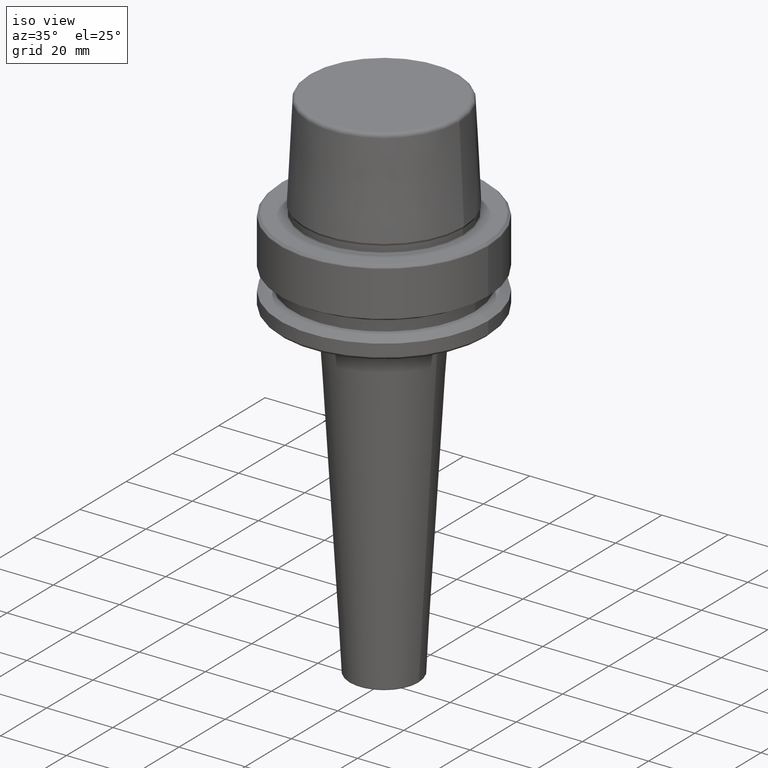
[diagram: clean part render]
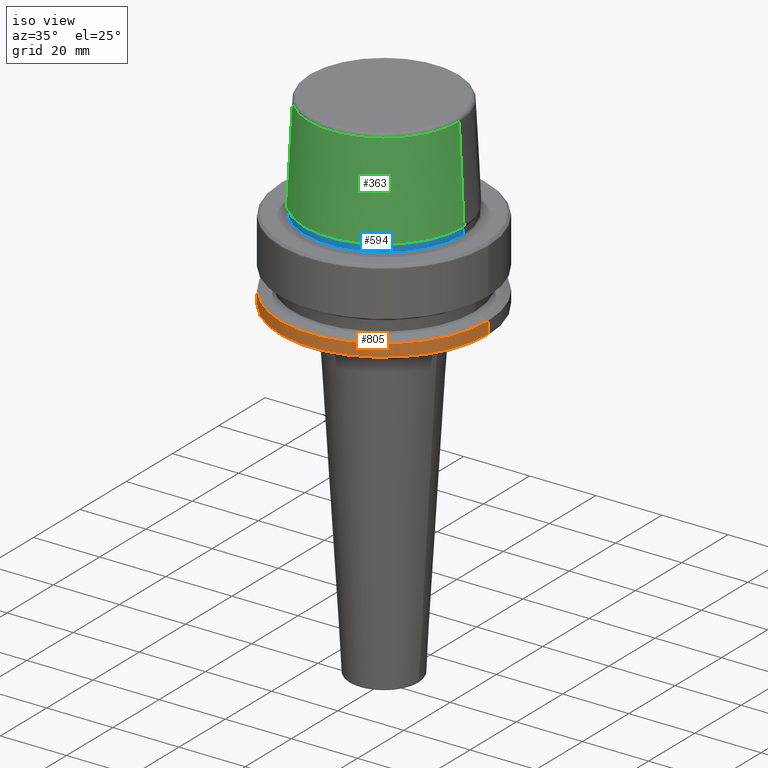
[diagram: same view with three faces highlighted in distinct colors, each labeled with its STEP entity id]
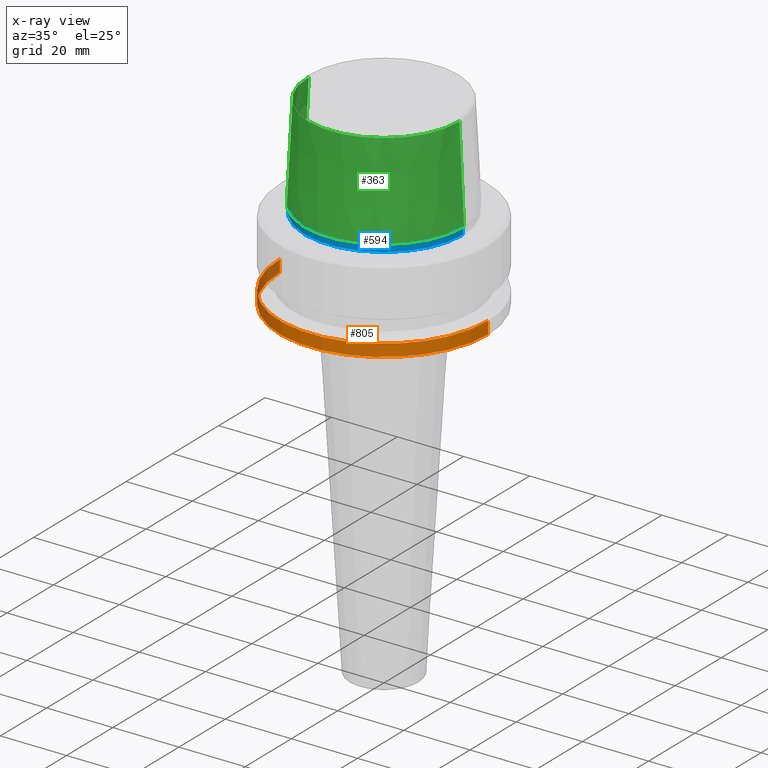
[diagram: x-ray of the same camera — body ghosted, the three highlighted faces saturated]
A machine part, iso view with three faces highlighted in distinct colors.
The next image is the same camera in x-ray (body ghosted, the three faces saturated) — at least one of them is partly hidden behind the body in this view.
Their STEP definitions:

[orange] entity #805 — the highlighted cylindrical surface (partial cylindrical patch) has radius 31.5 mm, axis along (-0, -0, 1).
#32 = CIRCLE ( 'NONE', #385, 31.50000000000000000 ) ;
#55 = DIRECTION ( 'NONE',  ( -0.0000000000000000000, -0.0000000000000000000, 1.000000000000000000 ) ) ;
#98 = LINE ( 'NONE', #356, #1111 ) ;
#108 = ORIENTED_EDGE ( 'NONE', *, *, #320, .F. ) ;
#172 = VERTEX_POINT ( 'NONE', #524 ) ;
#200 = CARTESIAN_POINT ( 'NONE',  ( 31.50000000000000000, 0.0000000000000000000, -21.37749907475931700 ) ) ;
#203 = DIRECTION ( 'NONE',  ( -0.0000000000000000000, -0.0000000000000000000, 1.000000000000000000 ) ) ;
#205 = EDGE_CURVE ( 'NONE', #256, #172, #98, .T. ) ;
#256 = VERTEX_POINT ( 'NONE', #1054 ) ;
#320 = EDGE_CURVE ( 'NONE', #172, #784, #32, .T. ) ;
#356 = CARTESIAN_POINT ( 'NONE',  ( -31.50000000000000000, 3.857637417314162700E-015, 78.96908074195309300 ) ) ;
#360 = EDGE_CURVE ( 'NONE', #256, #877, #712, .T. ) ;
#379 = DIRECTION ( 'NONE',  ( -0.0000000000000000000, -0.0000000000000000000, 1.000000000000000000 ) ) ;
#385 = AXIS2_PLACEMENT_3D ( 'NONE', #504, #1194, #600 ) ;
#393 = CARTESIAN_POINT ( 'NONE',  ( 0.0000000000000000000, 0.0000000000000000000, 78.96908074195309300 ) ) ;
#418 = LINE ( 'NONE', #969, #477 ) ;
#434 = EDGE_CURVE ( 'NONE', #877, #784, #418, .T. ) ;
#455 = FACE_OUTER_BOUND ( 'NONE', #1065, .T. ) ;
#477 = VECTOR ( 'NONE', #379, 1000.000000000000000 ) ;
#494 = CARTESIAN_POINT ( 'NONE',  ( 31.50000000000000000, 0.0000000000000000000, -25.03431457505077200 ) ) ;
#504 = CARTESIAN_POINT ( 'NONE',  ( 0.0000000000000000000, 0.0000000000000000000, -21.37749907475931700 ) ) ;
#517 = ORIENTED_EDGE ( 'NONE', *, *, #434, .T. ) ;
#524 = CARTESIAN_POINT ( 'NONE',  ( -31.50000000000000000, 3.857637417314162700E-015, -21.37749907475931700 ) ) ;
#600 = DIRECTION ( 'NONE',  ( 1.000000000000000000, 0.0000000000000000000, 0.0000000000000000000 ) ) ;
#629 = CARTESIAN_POINT ( 'NONE',  ( 0.0000000000000000000, 0.0000000000000000000, -25.03431457505077200 ) ) ;
#712 = CIRCLE ( 'NONE', #1224, 31.50000000000000000 ) ;
#733 = DIRECTION ( 'NONE',  ( 1.000000000000000000, 0.0000000000000000000, 0.0000000000000000000 ) ) ;
#784 = VERTEX_POINT ( 'NONE', #200 ) ;
#805 = ADVANCED_FACE ( 'NONE', ( #455 ), #1209, .T. ) ;
#877 = VERTEX_POINT ( 'NONE', #494 ) ;
#949 = DIRECTION ( 'NONE',  ( -0.0000000000000000000, -0.0000000000000000000, 1.000000000000000000 ) ) ;
#969 = CARTESIAN_POINT ( 'NONE',  ( 31.50000000000000000, 0.0000000000000000000, 78.96908074195309300 ) ) ;
#1054 = CARTESIAN_POINT ( 'NONE',  ( -31.50000000000000000, 3.857637417314161900E-015, -25.03431457505077200 ) ) ;
#1065 = EDGE_LOOP ( 'NONE', ( #1153, #1159, #517, #108 ) ) ;
#1074 = DIRECTION ( 'NONE',  ( 1.000000000000000000, 0.0000000000000000000, 0.0000000000000000000 ) ) ;
#1111 = VECTOR ( 'NONE', #949, 1000.000000000000000 ) ;
#1115 = AXIS2_PLACEMENT_3D ( 'NONE', #393, #203, #1074 ) ;
#1153 = ORIENTED_EDGE ( 'NONE', *, *, #205, .F. ) ;
#1159 = ORIENTED_EDGE ( 'NONE', *, *, #360, .T. ) ;
#1194 = DIRECTION ( 'NONE',  ( -0.0000000000000000000, -0.0000000000000000000, 1.000000000000000000 ) ) ;
#1209 = CYLINDRICAL_SURFACE ( 'NONE', #1115, 31.50000000000000000 ) ;
#1224 = AXIS2_PLACEMENT_3D ( 'NONE', #629, #55, #733 ) ;

[blue] entity #594 — the highlighted cylindrical surface (partial cylindrical patch) has radius 23.89 mm, axis along (-0, -0, 1).
#3 = DIRECTION ( 'NONE',  ( -0.0000000000000000000, -0.0000000000000000000, 1.000000000000000000 ) ) ;
#41 = VERTEX_POINT ( 'NONE', #1148 ) ;
#67 = CARTESIAN_POINT ( 'NONE',  ( -23.89000000000000100, 2.925681203163027000E-015, 78.96908074195309300 ) ) ;
#99 = DIRECTION ( 'NONE',  ( -0.0000000000000000000, -0.0000000000000000000, 1.000000000000000000 ) ) ;
#134 = EDGE_CURVE ( 'NONE', #149, #41, #727, .T. ) ;
#149 = VERTEX_POINT ( 'NONE', #615 ) ;
#151 = EDGE_CURVE ( 'NONE', #633, #1191, #695, .T. ) ;
#313 = CIRCLE ( 'NONE', #737, 23.89000000000000400 ) ;
#328 = DIRECTION ( 'NONE',  ( -0.0000000000000000000, -0.0000000000000000000, 1.000000000000000000 ) ) ;
#343 = CARTESIAN_POINT ( 'NONE',  ( 23.89000000000000400, 0.0000000000000000000, 0.1312552021302954000 ) ) ;
#375 = FACE_OUTER_BOUND ( 'NONE', #1096, .T. ) ;
#422 = VECTOR ( 'NONE', #328, 1000.000000000000000 ) ;
#572 = CARTESIAN_POINT ( 'NONE',  ( 0.0000000000000000000, 0.0000000000000000000, 0.1312552021302954000 ) ) ;
#594 = ADVANCED_FACE ( 'NONE', ( #375 ), #1098, .T. ) ;
#614 = ORIENTED_EDGE ( 'NONE', *, *, #134, .F. ) ;
#615 = CARTESIAN_POINT ( 'NONE',  ( -23.89000000000000400, 2.961613815265650600E-015, 0.1312552021302954000 ) ) ;
#626 = ORIENTED_EDGE ( 'NONE', *, *, #736, .T. ) ;
#631 = AXIS2_PLACEMENT_3D ( 'NONE', #1228, #934, #632 ) ;
#632 = DIRECTION ( 'NONE',  ( 1.000000000000000000, 0.0000000000000000000, 0.0000000000000000000 ) ) ;
#633 = VERTEX_POINT ( 'NONE', #343 ) ;
#636 = ORIENTED_EDGE ( 'NONE', *, *, #151, .T. ) ;
#674 = DIRECTION ( 'NONE',  ( 1.000000000000000000, 0.0000000000000000000, 0.0000000000000000000 ) ) ;
#686 = CARTESIAN_POINT ( 'NONE',  ( 0.0000000000000000000, 0.0000000000000000000, 1.845119734979375100 ) ) ;
#695 = LINE ( 'NONE', #1044, #422 ) ;
#727 = LINE ( 'NONE', #67, #1221 ) ;
#736 = EDGE_CURVE ( 'NONE', #149, #633, #313, .T. ) ;
#737 = AXIS2_PLACEMENT_3D ( 'NONE', #572, #3, #674 ) ;
#743 = CIRCLE ( 'NONE', #1200, 23.89000000000000100 ) ;
#747 = DIRECTION ( 'NONE',  ( -0.0000000000000000000, -0.0000000000000000000, 1.000000000000000000 ) ) ;
#785 = EDGE_CURVE ( 'NONE', #41, #1191, #743, .T. ) ;
#787 = DIRECTION ( 'NONE',  ( 1.000000000000000000, 0.0000000000000000000, 0.0000000000000000000 ) ) ;
#934 = DIRECTION ( 'NONE',  ( -0.0000000000000000000, -0.0000000000000000000, 1.000000000000000000 ) ) ;
#952 = ORIENTED_EDGE ( 'NONE', *, *, #785, .F. ) ;
#998 = CARTESIAN_POINT ( 'NONE',  ( 23.89000000000000100, 0.0000000000000000000, 1.845119734979375100 ) ) ;
#1044 = CARTESIAN_POINT ( 'NONE',  ( 23.89000000000000100, 0.0000000000000000000, 78.96908074195309300 ) ) ;
#1096 = EDGE_LOOP ( 'NONE', ( #614, #626, #636, #952 ) ) ;
#1098 = CYLINDRICAL_SURFACE ( 'NONE', #631, 23.89000000000000100 ) ;
#1148 = CARTESIAN_POINT ( 'NONE',  ( -23.89000000000000100, 2.944380070784114200E-015, 1.845119734979375100 ) ) ;
#1191 = VERTEX_POINT ( 'NONE', #998 ) ;
#1200 = AXIS2_PLACEMENT_3D ( 'NONE', #686, #99, #787 ) ;
#1221 = VECTOR ( 'NONE', #747, 1000.000000000000000 ) ;
#1228 = CARTESIAN_POINT ( 'NONE',  ( 0.0000000000000000000, 0.0000000000000000000, 78.96908074195309300 ) ) ;

[green] entity #363 — the highlighted conical surface has half-angle 2.868 deg.
#2 = LINE ( 'NONE', #1092, #1006 ) ;
#53 = AXIS2_PLACEMENT_3D ( 'NONE', #1225, #242, #439 ) ;
#126 = CARTESIAN_POINT ( 'NONE',  ( 22.77957961851797100, 2.876386432489616700E-015, 30.76004333261571900 ) ) ;
#191 = ORIENTED_EDGE ( 'NONE', *, *, #1155, .T. ) ;
#242 = DIRECTION ( 'NONE',  ( 0.0000000000000000000, 0.0000000000000000000, -1.000000000000000000 ) ) ;
#243 = CIRCLE ( 'NONE', #939, 22.77957961851797100 ) ;
#330 = CARTESIAN_POINT ( 'NONE',  ( 0.0000000000000000000, 0.0000000000000000000, 30.76004333261571900 ) ) ;
#363 = ADVANCED_FACE ( 'NONE', ( #970 ), #946, .T. ) ;
#409 = DIRECTION ( 'NONE',  ( -0.05003611051310804400, 0.0000000000000000000, -0.9987474093306675200 ) ) ;
#410 = VERTEX_POINT ( 'NONE', #843 ) ;
#416 = CARTESIAN_POINT ( 'NONE',  ( 0.0000000000000000000, 0.0000000000000000000, 2.500000000000002200 ) ) ;
#432 = DIRECTION ( 'NONE',  ( 1.000000000000000000, 0.0000000000000000000, 0.0000000000000000000 ) ) ;
#439 = DIRECTION ( 'NONE',  ( -1.000000000000000000, 0.0000000000000000000, 0.0000000000000000000 ) ) ;
#446 = EDGE_LOOP ( 'NONE', ( #1227, #603, #191, #672 ) ) ;
#489 = DIRECTION ( 'NONE',  ( 0.05003611051310804400, 6.127656258166099700E-018, -0.9987474093306675200 ) ) ;
#509 = DIRECTION ( 'NONE',  ( 1.000000000000000000, 0.0000000000000000000, 0.0000000000000000000 ) ) ;
#537 = EDGE_CURVE ( 'NONE', #720, #1157, #243, .T. ) ;
#603 = ORIENTED_EDGE ( 'NONE', *, *, #537, .F. ) ;
#672 = ORIENTED_EDGE ( 'NONE', *, *, #1162, .T. ) ;
#720 = VERTEX_POINT ( 'NONE', #904 ) ;
#799 = AXIS2_PLACEMENT_3D ( 'NONE', #416, #1099, #509 ) ;
#827 = EDGE_CURVE ( 'NONE', #1157, #1196, #1236, .T. ) ;
#843 = CARTESIAN_POINT ( 'NONE',  ( -24.19537568275369200, 2.963078938405201500E-015, 2.500000000000002200 ) ) ;
#882 = CARTESIAN_POINT ( 'NONE',  ( 24.19537568275369200, 2.963078938405201500E-015, 2.500000000000002200 ) ) ;
#904 = CARTESIAN_POINT ( 'NONE',  ( -22.77957961851797100, 0.0000000000000000000, 30.76004333261571900 ) ) ;
#913 = CARTESIAN_POINT ( 'NONE',  ( 24.19537568275369200, 0.0000000000000000000, 2.500000000000002200 ) ) ;
#939 = AXIS2_PLACEMENT_3D ( 'NONE', #330, #1019, #432 ) ;
#946 = CONICAL_SURFACE ( 'NONE', #53, 24.19537568275369200, 0.05005701257455997400 ) ;
#948 = VECTOR ( 'NONE', #489, 1000.000000000000200 ) ;
#970 = FACE_OUTER_BOUND ( 'NONE', #446, .T. ) ;
#1006 = VECTOR ( 'NONE', #409, 1000.000000000000200 ) ;
#1019 = DIRECTION ( 'NONE',  ( -0.0000000000000000000, -0.0000000000000000000, 1.000000000000000000 ) ) ;
#1036 = CIRCLE ( 'NONE', #799, 24.19537568275369200 ) ;
#1092 = CARTESIAN_POINT ( 'NONE',  ( -24.19537568275369200, 0.0000000000000000000, 2.500000000000002200 ) ) ;
#1099 = DIRECTION ( 'NONE',  ( -0.0000000000000000000, -0.0000000000000000000, 1.000000000000000000 ) ) ;
#1155 = EDGE_CURVE ( 'NONE', #720, #410, #2, .T. ) ;
#1157 = VERTEX_POINT ( 'NONE', #126 ) ;
#1162 = EDGE_CURVE ( 'NONE', #410, #1196, #1036, .T. ) ;
#1196 = VERTEX_POINT ( 'NONE', #913 ) ;
#1225 = CARTESIAN_POINT ( 'NONE',  ( 0.0000000000000000000, 0.0000000000000000000, 2.500000000000002200 ) ) ;
#1227 = ORIENTED_EDGE ( 'NONE', *, *, #827, .F. ) ;
#1236 = LINE ( 'NONE', #882, #948 ) ;